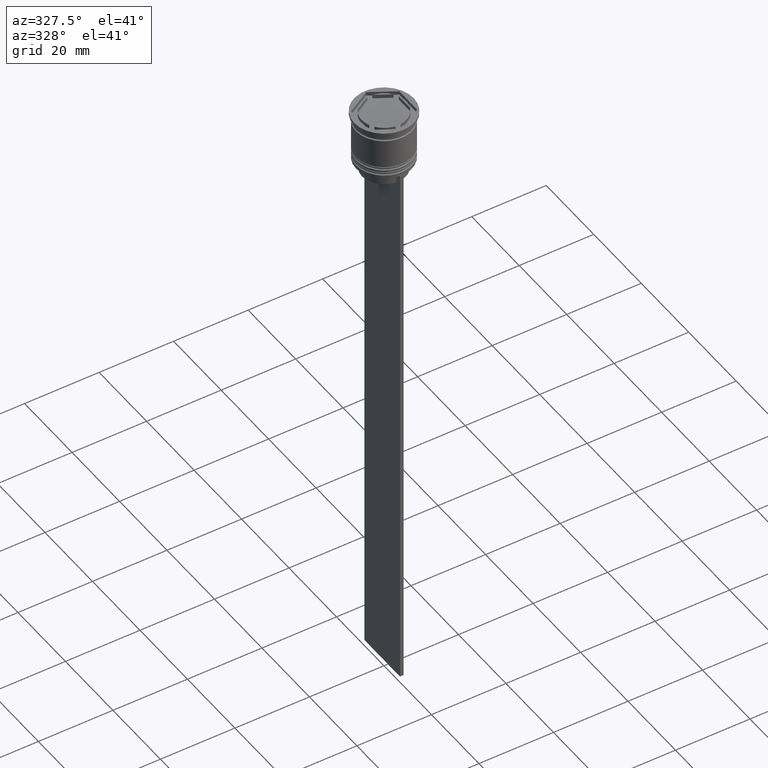
[diagram: clean part render]
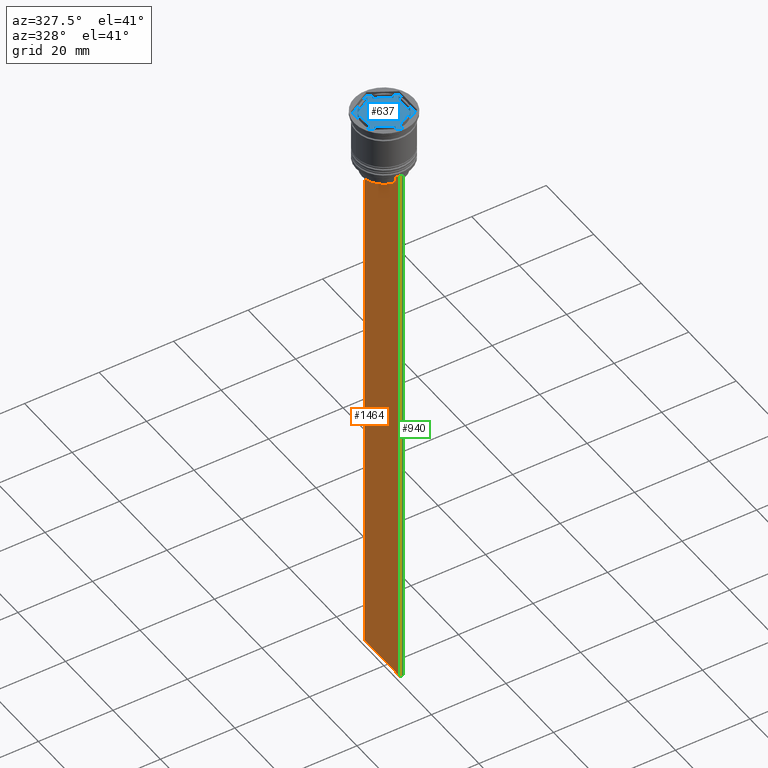
[diagram: same view with three faces highlighted in distinct colors, each labeled with its STEP entity id]
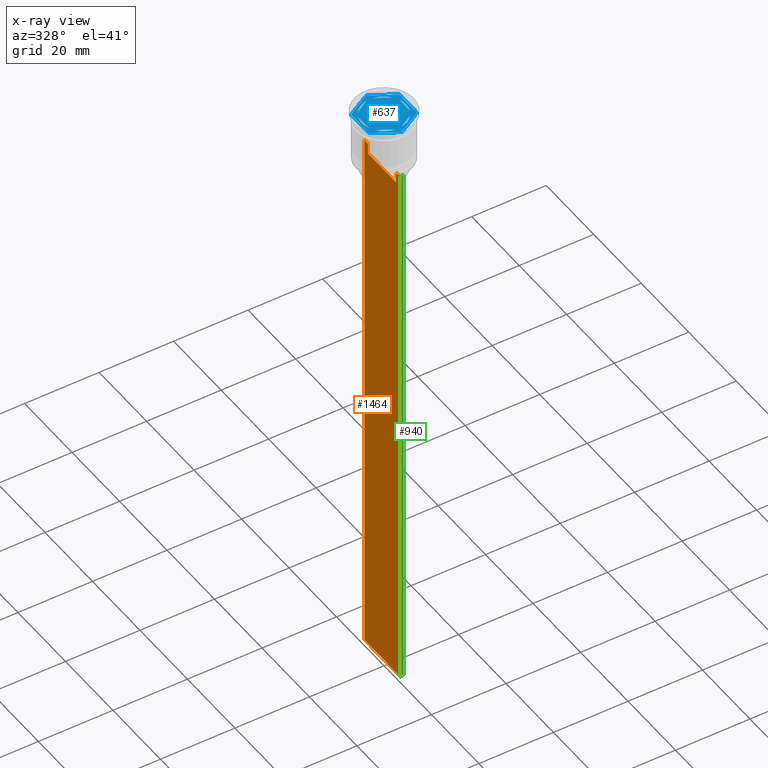
[diagram: x-ray of the same camera — body ghosted, the three highlighted faces saturated]
A machine part, auxiliary view with three faces highlighted in distinct colors.
The next image is the same camera in x-ray (body ghosted, the three faces saturated) — at least one of them is partly hidden behind the body in this view.
Their STEP definitions:

[orange] entity #1464 — the highlighted planar face has unit normal (-1, 0, 0).
#3 = DIRECTION ( 'NONE',  ( 0.000000000000000000, -1.000000000000000000, 0.000000000000000000 ) ) ;
#17 = EDGE_CURVE ( 'NONE', #614, #95, #1776, .T. ) ;
#49 = EDGE_CURVE ( 'NONE', #921, #2111, #803, .T. ) ;
#88 = CARTESIAN_POINT ( 'NONE',  ( -0.5000000000000000000, -7.499999999999999112, -14.00000000000000178 ) ) ;
#95 = VERTEX_POINT ( 'NONE', #2182 ) ;
#101 = CARTESIAN_POINT ( 'NONE',  ( -0.5000000000000000000, -6.380438856379706536, -14.00000000000000178 ) ) ;
#103 = ORIENTED_EDGE ( 'NONE', *, *, #1851, .F. ) ;
#104 = B_SPLINE_CURVE_WITH_KNOTS ( 'NONE', 3,
 ( #1912, #382, #934, #372 ),
 .UNSPECIFIED., .F., .F.,
 ( 4, 4 ),
 ( 0.02765270321082434479, 0.02836198271238431559 ),
 .UNSPECIFIED. ) ;
#133 = ORIENTED_EDGE ( 'NONE', *, *, #2258, .F. ) ;
#140 = VERTEX_POINT ( 'NONE', #1061 ) ;
#161 = EDGE_CURVE ( 'NONE', #828, #1023, #1672, .T. ) ;
#170 = ORIENTED_EDGE ( 'NONE', *, *, #253, .F. ) ;
#200 = ORIENTED_EDGE ( 'NONE', *, *, #161, .F. ) ;
#253 = EDGE_CURVE ( 'NONE', #1757, #828, #1494, .T. ) ;
#372 = CARTESIAN_POINT ( 'NONE',  ( -0.5000000000000000000, -6.380438856379706536, -14.00000000000000178 ) ) ;
#382 = CARTESIAN_POINT ( 'NONE',  ( -0.5000000000000000000, -6.046019991840948293, -14.33335703538585726 ) ) ;
#413 = PLANE ( 'NONE',  #1186 ) ;
#430 = VECTOR ( 'NONE', #1939, 1000.000000000000000 ) ;
#484 = ORIENTED_EDGE ( 'NONE', *, *, #585, .F. ) ;
#503 = CARTESIAN_POINT ( 'NONE',  ( -0.5000000000000000000, -7.499999999999999112, 1.033296378372908997 ) ) ;
#552 = ORIENTED_EDGE ( 'NONE', *, *, #1822, .F. ) ;
#576 = DIRECTION ( 'NONE',  ( 0.000000000000000000, 0.000000000000000000, -1.000000000000000000 ) ) ;
#585 = EDGE_CURVE ( 'NONE', #95, #1757, #892, .T. ) ;
#596 = DIRECTION ( 'NONE',  ( 0.000000000000000000, -1.000000000000000000, 0.000000000000000000 ) ) ;
#603 = FACE_OUTER_BOUND ( 'NONE', #1289, .T. ) ;
#608 = CARTESIAN_POINT ( 'NONE',  ( -0.5000000000000000000, 7.500000000000002665, -14.00000000000000178 ) ) ;
#614 = VERTEX_POINT ( 'NONE', #101 ) ;
#665 = CARTESIAN_POINT ( 'NONE',  ( -0.5000000000000000000, -7.499999999999999112, -14.00000000000000178 ) ) ;
#736 = CARTESIAN_POINT ( 'NONE',  ( -0.5000000000000000000, -7.499999999999999112, -14.00000000000000178 ) ) ;
#761 = CARTESIAN_POINT ( 'NONE',  ( -0.5000000000000000000, 7.500000000000002665, 1.033296378372908997 ) ) ;
#792 = CARTESIAN_POINT ( 'NONE',  ( -0.5000000000000000000, 7.383088784512886527, -14.00000000000000178 ) ) ;
#803 = LINE ( 'NONE', #1575, #1517 ) ;
#828 = VERTEX_POINT ( 'NONE', #979 ) ;
#852 = CARTESIAN_POINT ( 'NONE',  ( -0.5000000000000000000, 6.046020074006152711, -14.33335695351623151 ) ) ;
#854 = CARTESIAN_POINT ( 'NONE',  ( -0.5000000000000000000, 5.878775382679625849, 0.000000000000000000 ) ) ;
#875 = CARTESIAN_POINT ( 'NONE',  ( -0.5000000000000000000, 5.878775382679625849, -14.50000000000000000 ) ) ;
#878 = VECTOR ( 'NONE', #576, 1000.000000000000000 ) ;
#892 = LINE ( 'NONE', #665, #2117 ) ;
#894 = CARTESIAN_POINT ( 'NONE',  ( -0.5000000000000000000, 6.380438856379706536, -14.00000000000000178 ) ) ;
#905 = DIRECTION ( 'NONE',  ( 0.000000000000000000, 1.000000000000000000, 0.000000000000000000 ) ) ;
#921 = VERTEX_POINT ( 'NONE', #1078 ) ;
#934 = CARTESIAN_POINT ( 'NONE',  ( -0.5000000000000000000, -6.213239311785844876, -14.16668851110870087 ) ) ;
#957 = DIRECTION ( 'NONE',  ( 0.000000000000000000, 0.000000000000000000, -1.000000000000000000 ) ) ;
#964 = ORIENTED_EDGE ( 'NONE', *, *, #49, .F. ) ;
#979 = CARTESIAN_POINT ( 'NONE',  ( -0.5000000000000000000, -7.499999999999999112, -163.9999999999999716 ) ) ;
#993 = CARTESIAN_POINT ( 'NONE',  ( -0.5000000000000000000, 5.899999999999998579, -17.00000000000000000 ) ) ;
#997 = ORIENTED_EDGE ( 'NONE', *, *, #2435, .F. ) ;
#1023 = VERTEX_POINT ( 'NONE', #2011 ) ;
#1061 = CARTESIAN_POINT ( 'NONE',  ( -0.5000000000000000000, 5.878775382679625849, -14.50000000000000000 ) ) ;
#1070 = EDGE_CURVE ( 'NONE', #1688, #140, #2314, .T. ) ;
#1078 = CARTESIAN_POINT ( 'NONE',  ( -0.5000000000000000000, -5.878775382679625849, -17.00000000000000000 ) ) ;
#1081 = DIRECTION ( 'NONE',  ( 0.000000000000000000, -1.000000000000000000, 0.000000000000000000 ) ) ;
#1155 = VECTOR ( 'NONE', #596, 1000.000000000000000 ) ;
#1186 = AXIS2_PLACEMENT_3D ( 'NONE', #503, #1262, #1298 ) ;
#1213 = CARTESIAN_POINT ( 'NONE',  ( -0.5000000000000000000, -7.499999999999999112, -14.00000000000000178 ) ) ;
#1252 = CARTESIAN_POINT ( 'NONE',  ( -0.5000000000000000000, -5.878775382679625849, -14.50000000000000000 ) ) ;
#1262 = DIRECTION ( 'NONE',  ( -1.000000000000000000, 0.000000000000000000, 0.000000000000000000 ) ) ;
#1289 = EDGE_LOOP ( 'NONE', ( #2166, #133, #552, #1798, #200, #170, #484, #1328, #1591, #964, #997, #103 ) ) ;
#1298 = DIRECTION ( 'NONE',  ( 0.000000000000000000, 0.000000000000000000, 1.000000000000000000 ) ) ;
#1316 = CARTESIAN_POINT ( 'NONE',  ( -0.5000000000000000000, -7.499999999999999112, 1.033296378372908997 ) ) ;
#1328 = ORIENTED_EDGE ( 'NONE', *, *, #17, .F. ) ;
#1348 = VECTOR ( 'NONE', #1786, 1000.000000000000000 ) ;
#1372 = DIRECTION ( 'NONE',  ( -0.000000000000000000, -0.000000000000000000, 1.000000000000000000 ) ) ;
#1430 = VERTEX_POINT ( 'NONE', #792 ) ;
#1464 = ADVANCED_FACE ( 'NONE', ( #603 ), #413, .T. ) ;
#1484 = CARTESIAN_POINT ( 'NONE',  ( -0.5000000000000000000, -7.499999999999999112, -163.9999999999999716 ) ) ;
#1494 = LINE ( 'NONE', #1316, #878 ) ;
#1517 = VECTOR ( 'NONE', #1372, 1000.000000000000000 ) ;
#1575 = CARTESIAN_POINT ( 'NONE',  ( -0.5000000000000000000, -5.878775382679625849, 0.000000000000000000 ) ) ;
#1591 = ORIENTED_EDGE ( 'NONE', *, *, #1634, .F. ) ;
#1634 = EDGE_CURVE ( 'NONE', #2111, #614, #104, .T. ) ;
#1672 = LINE ( 'NONE', #1484, #2211 ) ;
#1688 = VERTEX_POINT ( 'NONE', #1742 ) ;
#1689 = LINE ( 'NONE', #736, #2167 ) ;
#1742 = CARTESIAN_POINT ( 'NONE',  ( -0.5000000000000000000, 6.380438856379706536, -14.00000000000000178 ) ) ;
#1757 = VERTEX_POINT ( 'NONE', #2331 ) ;
#1776 = LINE ( 'NONE', #1213, #430 ) ;
#1786 = DIRECTION ( 'NONE',  ( 0.000000000000000000, 0.000000000000000000, -1.000000000000000000 ) ) ;
#1798 = ORIENTED_EDGE ( 'NONE', *, *, #2279, .T. ) ;
#1803 = LINE ( 'NONE', #88, #1954 ) ;
#1822 = EDGE_CURVE ( 'NONE', #2414, #1430, #1803, .T. ) ;
#1839 = CARTESIAN_POINT ( 'NONE',  ( -0.5000000000000000000, 6.213239387491007015, -14.16668843563492430 ) ) ;
#1851 = EDGE_CURVE ( 'NONE', #140, #2343, #2352, .T. ) ;
#1912 = CARTESIAN_POINT ( 'NONE',  ( -0.5000000000000000000, -5.878775382679625849, -14.50000000000000000 ) ) ;
#1939 = DIRECTION ( 'NONE',  ( 0.000000000000000000, -1.000000000000000000, 0.000000000000000000 ) ) ;
#1954 = VECTOR ( 'NONE', #2341, 1000.000000000000000 ) ;
#2011 = CARTESIAN_POINT ( 'NONE',  ( -0.5000000000000000000, 7.500000000000002665, -163.9999999999999716 ) ) ;
#2085 = VECTOR ( 'NONE', #957, 1000.000000000000000 ) ;
#2111 = VERTEX_POINT ( 'NONE', #1252 ) ;
#2117 = VECTOR ( 'NONE', #1081, 1000.000000000000000 ) ;
#2166 = ORIENTED_EDGE ( 'NONE', *, *, #1070, .F. ) ;
#2167 = VECTOR ( 'NONE', #3, 1000.000000000000000 ) ;
#2182 = CARTESIAN_POINT ( 'NONE',  ( -0.5000000000000000000, -7.383088784512886527, -14.00000000000000178 ) ) ;
#2211 = VECTOR ( 'NONE', #905, 1000.000000000000000 ) ;
#2258 = EDGE_CURVE ( 'NONE', #1430, #1688, #1689, .T. ) ;
#2279 = EDGE_CURVE ( 'NONE', #2414, #1023, #2487, .T. ) ;
#2300 = CARTESIAN_POINT ( 'NONE',  ( -0.5000000000000000000, 5.878775382679625849, -17.00000000000000000 ) ) ;
#2314 = B_SPLINE_CURVE_WITH_KNOTS ( 'NONE', 3,
 ( #894, #1839, #852, #875 ),
 .UNSPECIFIED., .F., .F.,
 ( 4, 4 ),
 ( 0.01087727669788152163, 0.01158556069794289788 ),
 .UNSPECIFIED. ) ;
#2330 = LINE ( 'NONE', #993, #1155 ) ;
#2331 = CARTESIAN_POINT ( 'NONE',  ( -0.5000000000000000000, -7.499999999999999112, -14.00000000000000178 ) ) ;
#2341 = DIRECTION ( 'NONE',  ( 0.000000000000000000, -1.000000000000000000, 0.000000000000000000 ) ) ;
#2343 = VERTEX_POINT ( 'NONE', #2300 ) ;
#2352 = LINE ( 'NONE', #854, #1348 ) ;
#2414 = VERTEX_POINT ( 'NONE', #608 ) ;
#2435 = EDGE_CURVE ( 'NONE', #2343, #921, #2330, .T. ) ;
#2487 = LINE ( 'NONE', #761, #2085 ) ;

[blue] entity #637 — the highlighted planar face has unit normal (0, 0, 1).
#5 = EDGE_CURVE ( 'NONE', #860, #815, #1958, .T. ) ;
#10 = ORIENTED_EDGE ( 'NONE', *, *, #857, .F. ) ;
#11 = CARTESIAN_POINT ( 'NONE',  ( 0.000000000000000000, 0.000000000000000000, -1.000000000000000000 ) ) ;
#19 = CIRCLE ( 'NONE', #1380, 6.000000000000000888 ) ;
#24 = CIRCLE ( 'NONE', #1111, 6.000000000000000888 ) ;
#33 = DIRECTION ( 'NONE',  ( 0.000000000000000000, 0.000000000000000000, 1.000000000000000000 ) ) ;
#39 = LINE ( 'NONE', #2174, #1996 ) ;
#46 = EDGE_CURVE ( 'NONE', #2190, #1901, #2169, .T. ) ;
#78 = CARTESIAN_POINT ( 'NONE',  ( 0.000000000000000000, 0.000000000000000000, -1.000000000000000000 ) ) ;
#94 = EDGE_LOOP ( 'NONE', ( #10, #1659, #1622 ) ) ;
#99 = DIRECTION ( 'NONE',  ( 0.000000000000000000, 1.000000000000000000, 0.000000000000000000 ) ) ;
#113 = VECTOR ( 'NONE', #2175, 1000.000000000000114 ) ;
#120 = VECTOR ( 'NONE', #1859, 1000.000000000000114 ) ;
#121 = EDGE_CURVE ( 'NONE', #903, #1617, #141, .T. ) ;
#123 = CARTESIAN_POINT ( 'NONE',  ( -5.500000000000001776, 3.175426480542942187, -1.000000000000000888 ) ) ;
#141 = LINE ( 'NONE', #1103, #120 ) ;
#146 = CARTESIAN_POINT ( 'NONE',  ( 5.500000000000000000, -2.397915761656362665, -1.000000000000000888 ) ) ;
#152 = EDGE_LOOP ( 'NONE', ( #422, #1701 ) ) ;
#212 = VERTEX_POINT ( 'NONE', #1624 ) ;
#214 = EDGE_CURVE ( 'NONE', #815, #860, #725, .T. ) ;
#221 = AXIS2_PLACEMENT_3D ( 'NONE', #1646, #515, #1277 ) ;
#257 = LINE ( 'NONE', #1783, #2406 ) ;
#292 = ORIENTED_EDGE ( 'NONE', *, *, #2374, .T. ) ;
#312 = CARTESIAN_POINT ( 'NONE',  ( -5.500000000000001776, 2.397915761656359113, -1.000000000000000888 ) ) ;
#317 = VECTOR ( 'NONE', #537, 1000.000000000000000 ) ;
#370 = ORIENTED_EDGE ( 'NONE', *, *, #214, .F. ) ;
#379 = ORIENTED_EDGE ( 'NONE', *, *, #46, .T. ) ;
#384 = DIRECTION ( 'NONE',  ( 1.000000000000000000, 0.000000000000000000, 0.000000000000000000 ) ) ;
#394 = AXIS2_PLACEMENT_3D ( 'NONE', #869, #1448, #1092 ) ;
#399 = CARTESIAN_POINT ( 'NONE',  ( 0.000000000000000000, 7.505553499465133171, -1.000000000000000000 ) ) ;
#422 = ORIENTED_EDGE ( 'NONE', *, *, #2005, .F. ) ;
#459 = DIRECTION ( 'NONE',  ( -0.8660254037844387076, 0.4999999999999997224, 0.000000000000000000 ) ) ;
#469 = DIRECTION ( 'NONE',  ( 0.8660254037844385966, 0.5000000000000001110, 0.000000000000000000 ) ) ;
#478 = DIRECTION ( 'NONE',  ( 1.000000000000000000, 0.000000000000000000, 0.000000000000000000 ) ) ;
#479 = CARTESIAN_POINT ( 'NONE',  ( 5.500000000000000000, -3.175426480542943519, -1.000000000000000888 ) ) ;
#515 = DIRECTION ( 'NONE',  ( 0.000000000000000000, 0.000000000000000000, 1.000000000000000000 ) ) ;
#516 = EDGE_CURVE ( 'NONE', #1256, #212, #24, .T. ) ;
#532 = EDGE_CURVE ( 'NONE', #1617, #903, #1712, .T. ) ;
#537 = DIRECTION ( 'NONE',  ( 2.311253228826399154E-16, 1.000000000000000000, 0.000000000000000000 ) ) ;
#559 = ORIENTED_EDGE ( 'NONE', *, *, #516, .F. ) ;
#572 = DIRECTION ( 'NONE',  ( 0.000000000000000000, 0.000000000000000000, 1.000000000000000000 ) ) ;
#594 = CARTESIAN_POINT ( 'NONE',  ( 6.499999999999999112, -3.752776749732567030, -1.000000000000000000 ) ) ;
#630 = VECTOR ( 'NONE', #459, 1000.000000000000114 ) ;
#631 = DIRECTION ( 'NONE',  ( 1.000000000000000000, 0.000000000000000000, 0.000000000000000000 ) ) ;
#637 = ADVANCED_FACE ( 'NONE', ( #704, #2402, #1255, #694, #1067, #1466, #2415 ), #1057, .T. ) ;
#638 = AXIS2_PLACEMENT_3D ( 'NONE', #11, #1173, #631 ) ;
#670 = EDGE_CURVE ( 'NONE', #931, #990, #2114, .T. ) ;
#694 = FACE_BOUND ( 'NONE', #152, .T. ) ;
#704 = FACE_BOUND ( 'NONE', #1793, .T. ) ;
#725 = LINE ( 'NONE', #1686, #113 ) ;
#729 = LINE ( 'NONE', #2464, #630 ) ;
#735 = ORIENTED_EDGE ( 'NONE', *, *, #2068, .F. ) ;
#794 = VERTEX_POINT ( 'NONE', #399 ) ;
#802 = DIRECTION ( 'NONE',  ( 1.000000000000000000, 0.000000000000000000, 0.000000000000000000 ) ) ;
#807 = EDGE_CURVE ( 'NONE', #794, #1635, #1561, .T. ) ;
#809 = VERTEX_POINT ( 'NONE', #812 ) ;
#812 = CARTESIAN_POINT ( 'NONE',  ( -6.500000000000000888, -3.752776749732568806, -1.000000000000000000 ) ) ;
#815 = VERTEX_POINT ( 'NONE', #2161 ) ;
#827 = CARTESIAN_POINT ( 'NONE',  ( 0.000000000000000000, 0.000000000000000000, -1.000000000000000000 ) ) ;
#846 = CARTESIAN_POINT ( 'NONE',  ( 4.826655965729517384, 3.564181839986237499, -1.000000000000000888 ) ) ;
#857 = EDGE_CURVE ( 'NONE', #1535, #931, #19, .T. ) ;
#858 = ORIENTED_EDGE ( 'NONE', *, *, #1015, .F. ) ;
#860 = VERTEX_POINT ( 'NONE', #846 ) ;
#869 = CARTESIAN_POINT ( 'NONE',  ( 0.000000000000000000, 0.000000000000000000, -1.000000000000000000 ) ) ;
#881 = CIRCLE ( 'NONE', #1038, 6.000000000000000888 ) ;
#903 = VERTEX_POINT ( 'NONE', #1936 ) ;
#931 = VERTEX_POINT ( 'NONE', #1274 ) ;
#942 = ORIENTED_EDGE ( 'NONE', *, *, #807, .T. ) ;
#967 = LINE ( 'NONE', #2086, #317 ) ;
#976 = DIRECTION ( 'NONE',  ( 0.8660254037844387076, -0.4999999999999997224, 0.000000000000000000 ) ) ;
#983 = CARTESIAN_POINT ( 'NONE',  ( 0.000000000000000000, 0.000000000000000000, -1.000000000000000000 ) ) ;
#990 = VERTEX_POINT ( 'NONE', #1260 ) ;
#1015 = EDGE_CURVE ( 'NONE', #2304, #2100, #2203, .T. ) ;
#1038 = AXIS2_PLACEMENT_3D ( 'NONE', #1865, #1652, #478 ) ;
#1057 = PLANE ( 'NONE',  #221 ) ;
#1067 = FACE_BOUND ( 'NONE', #94, .T. ) ;
#1084 = EDGE_CURVE ( 'NONE', #212, #1256, #1799, .T. ) ;
#1092 = DIRECTION ( 'NONE',  ( 1.000000000000000000, 0.000000000000000000, 0.000000000000000000 ) ) ;
#1103 = CARTESIAN_POINT ( 'NONE',  ( -1.734723475976807094E-15, -6.350852961085884374, -1.000000000000000888 ) ) ;
#1111 = AXIS2_PLACEMENT_3D ( 'NONE', #983, #33, #802 ) ;
#1122 = CARTESIAN_POINT ( 'NONE',  ( 5.500000000000001776, 2.397915761656360001, -1.000000000000000888 ) ) ;
#1132 = CARTESIAN_POINT ( 'NONE',  ( -6.500000000000000888, 3.752776749732564365, -1.000000000000000000 ) ) ;
#1173 = DIRECTION ( 'NONE',  ( 0.000000000000000000, 0.000000000000000000, 1.000000000000000000 ) ) ;
#1226 = VECTOR ( 'NONE', #1925, 1000.000000000000000 ) ;
#1243 = DIRECTION ( 'NONE',  ( -2.731481088613015255E-16, -1.000000000000000000, 0.000000000000000000 ) ) ;
#1255 = FACE_BOUND ( 'NONE', #2150, .T. ) ;
#1256 = VERTEX_POINT ( 'NONE', #1338 ) ;
#1259 = LINE ( 'NONE', #123, #1275 ) ;
#1260 = CARTESIAN_POINT ( 'NONE',  ( -5.500000000000001776, -2.397915761656359113, -1.000000000000000888 ) ) ;
#1274 = CARTESIAN_POINT ( 'NONE',  ( -6.000000000000000888, 0.000000000000000000, -1.000000000000000000 ) ) ;
#1275 = VECTOR ( 'NONE', #99, 1000.000000000000000 ) ;
#1277 = DIRECTION ( 'NONE',  ( 1.000000000000000000, 0.000000000000000000, -0.000000000000000000 ) ) ;
#1306 = VECTOR ( 'NONE', #2028, 1000.000000000000000 ) ;
#1312 = CARTESIAN_POINT ( 'NONE',  ( 0.000000000000000000, 0.000000000000000000, -1.000000000000000000 ) ) ;
#1338 = CARTESIAN_POINT ( 'NONE',  ( -0.6733440342704829495, 5.962097601642593503, -1.000000000000000888 ) ) ;
#1380 = AXIS2_PLACEMENT_3D ( 'NONE', #827, #1771, #1401 ) ;
#1382 = ORIENTED_EDGE ( 'NONE', *, *, #1923, .T. ) ;
#1383 = ORIENTED_EDGE ( 'NONE', *, *, #5, .F. ) ;
#1396 = LINE ( 'NONE', #2339, #2357 ) ;
#1399 = CARTESIAN_POINT ( 'NONE',  ( -4.826655965729520048, -3.564181839986235723, -1.000000000000000888 ) ) ;
#1401 = DIRECTION ( 'NONE',  ( 1.000000000000000000, 0.000000000000000000, 0.000000000000000000 ) ) ;
#1431 = VECTOR ( 'NONE', #1243, 1000.000000000000000 ) ;
#1446 = EDGE_LOOP ( 'NONE', ( #559, #1547 ) ) ;
#1448 = DIRECTION ( 'NONE',  ( 0.000000000000000000, 0.000000000000000000, 1.000000000000000000 ) ) ;
#1459 = VERTEX_POINT ( 'NONE', #2327 ) ;
#1466 = FACE_BOUND ( 'NONE', #1446, .T. ) ;
#1523 = CARTESIAN_POINT ( 'NONE',  ( -0.6733440342704850590, -5.962097601642593503, -1.000000000000000888 ) ) ;
#1535 = VERTEX_POINT ( 'NONE', #312 ) ;
#1547 = ORIENTED_EDGE ( 'NONE', *, *, #1084, .F. ) ;
#1549 = EDGE_CURVE ( 'NONE', #1459, #794, #729, .T. ) ;
#1561 = LINE ( 'NONE', #1744, #1226 ) ;
#1617 = VERTEX_POINT ( 'NONE', #2284 ) ;
#1622 = ORIENTED_EDGE ( 'NONE', *, *, #670, .F. ) ;
#1624 = CARTESIAN_POINT ( 'NONE',  ( -4.826655965729520048, 3.564181839986233946, -1.000000000000000888 ) ) ;
#1635 = VERTEX_POINT ( 'NONE', #1132 ) ;
#1646 = CARTESIAN_POINT ( 'NONE',  ( 0.000000000000000000, 0.000000000000000000, -1.000000000000000000 ) ) ;
#1652 = DIRECTION ( 'NONE',  ( 0.000000000000000000, 0.000000000000000000, 1.000000000000000000 ) ) ;
#1659 = ORIENTED_EDGE ( 'NONE', *, *, #2165, .F. ) ;
#1669 = VERTEX_POINT ( 'NONE', #1523 ) ;
#1686 = CARTESIAN_POINT ( 'NONE',  ( 5.500000000000001776, 3.175426480542944407, -1.000000000000000888 ) ) ;
#1701 = ORIENTED_EDGE ( 'NONE', *, *, #1892, .F. ) ;
#1712 = CIRCLE ( 'NONE', #394, 6.000000000000000888 ) ;
#1744 = CARTESIAN_POINT ( 'NONE',  ( 0.000000000000000000, 7.505553499465133171, -1.000000000000000000 ) ) ;
#1754 = AXIS2_PLACEMENT_3D ( 'NONE', #78, #2373, #1997 ) ;
#1771 = DIRECTION ( 'NONE',  ( 0.000000000000000000, 0.000000000000000000, 1.000000000000000000 ) ) ;
#1783 = CARTESIAN_POINT ( 'NONE',  ( -6.500000000000000888, -3.752776749732568806, -1.000000000000000000 ) ) ;
#1793 = EDGE_LOOP ( 'NONE', ( #1383, #370 ) ) ;
#1799 = LINE ( 'NONE', #2428, #1306 ) ;
#1846 = ORIENTED_EDGE ( 'NONE', *, *, #1549, .T. ) ;
#1859 = DIRECTION ( 'NONE',  ( -0.8660254037844387076, -0.4999999999999997224, 0.000000000000000000 ) ) ;
#1865 = CARTESIAN_POINT ( 'NONE',  ( 0.000000000000000000, 0.000000000000000000, -1.000000000000000000 ) ) ;
#1892 = EDGE_CURVE ( 'NONE', #1669, #2391, #1396, .T. ) ;
#1901 = VERTEX_POINT ( 'NONE', #594 ) ;
#1914 = CIRCLE ( 'NONE', #638, 6.000000000000000888 ) ;
#1923 = EDGE_CURVE ( 'NONE', #1635, #809, #39, .T. ) ;
#1925 = DIRECTION ( 'NONE',  ( -0.8660254037844385966, -0.5000000000000001110, 0.000000000000000000 ) ) ;
#1936 = CARTESIAN_POINT ( 'NONE',  ( 4.826655965729520048, -3.564181839986233946, -1.000000000000000888 ) ) ;
#1958 = CIRCLE ( 'NONE', #1754, 6.000000000000000888 ) ;
#1984 = DIRECTION ( 'NONE',  ( 0.000000000000000000, -1.000000000000000000, 0.000000000000000000 ) ) ;
#1996 = VECTOR ( 'NONE', #1984, 1000.000000000000000 ) ;
#1997 = DIRECTION ( 'NONE',  ( 1.000000000000000000, 0.000000000000000000, 0.000000000000000000 ) ) ;
#1999 = ORIENTED_EDGE ( 'NONE', *, *, #2296, .T. ) ;
#2005 = EDGE_CURVE ( 'NONE', #2391, #1669, #1914, .T. ) ;
#2028 = DIRECTION ( 'NONE',  ( 0.8660254037844385966, 0.5000000000000001110, -0.000000000000000000 ) ) ;
#2059 = CARTESIAN_POINT ( 'NONE',  ( -4.280685092543093048E-16, -7.505553499465134060, -1.000000000000000000 ) ) ;
#2068 = EDGE_CURVE ( 'NONE', #2100, #2304, #881, .T. ) ;
#2086 = CARTESIAN_POINT ( 'NONE',  ( 6.499999999999999112, -3.752776749732567030, -1.000000000000000000 ) ) ;
#2100 = VERTEX_POINT ( 'NONE', #146 ) ;
#2114 = CIRCLE ( 'NONE', #2475, 6.000000000000000888 ) ;
#2150 = EDGE_LOOP ( 'NONE', ( #2383, #2449 ) ) ;
#2153 = DIRECTION ( 'NONE',  ( -0.8660254037844385966, 0.5000000000000002220, 0.000000000000000000 ) ) ;
#2161 = CARTESIAN_POINT ( 'NONE',  ( 0.6733440342704825055, 5.962097601642593503, -1.000000000000000888 ) ) ;
#2165 = EDGE_CURVE ( 'NONE', #990, #1535, #1259, .T. ) ;
#2169 = LINE ( 'NONE', #2192, #2488 ) ;
#2174 = CARTESIAN_POINT ( 'NONE',  ( -6.500000000000000888, 3.752776749732564365, -1.000000000000000000 ) ) ;
#2175 = DIRECTION ( 'NONE',  ( 0.8660254037844387076, -0.4999999999999997224, 0.000000000000000000 ) ) ;
#2190 = VERTEX_POINT ( 'NONE', #2059 ) ;
#2192 = CARTESIAN_POINT ( 'NONE',  ( -4.280685092543093048E-16, -7.505553499465134060, -1.000000000000000000 ) ) ;
#2203 = LINE ( 'NONE', #479, #1431 ) ;
#2257 = EDGE_LOOP ( 'NONE', ( #735, #858 ) ) ;
#2284 = CARTESIAN_POINT ( 'NONE',  ( 0.6733440342704786197, -5.962097601642593503, -1.000000000000000888 ) ) ;
#2296 = EDGE_CURVE ( 'NONE', #1901, #1459, #967, .T. ) ;
#2304 = VERTEX_POINT ( 'NONE', #1122 ) ;
#2327 = CARTESIAN_POINT ( 'NONE',  ( 6.500000000000000888, 3.752776749732567918, -1.000000000000000000 ) ) ;
#2339 = CARTESIAN_POINT ( 'NONE',  ( -5.500000000000001776, -3.175426480542941743, -1.000000000000000888 ) ) ;
#2357 = VECTOR ( 'NONE', #2153, 999.9999999999998863 ) ;
#2373 = DIRECTION ( 'NONE',  ( 0.000000000000000000, 0.000000000000000000, 1.000000000000000000 ) ) ;
#2374 = EDGE_CURVE ( 'NONE', #809, #2190, #257, .T. ) ;
#2383 = ORIENTED_EDGE ( 'NONE', *, *, #532, .F. ) ;
#2391 = VERTEX_POINT ( 'NONE', #1399 ) ;
#2402 = FACE_BOUND ( 'NONE', #2257, .T. ) ;
#2406 = VECTOR ( 'NONE', #976, 1000.000000000000114 ) ;
#2415 = FACE_OUTER_BOUND ( 'NONE', #2461, .T. ) ;
#2428 = CARTESIAN_POINT ( 'NONE',  ( 4.336808689942017736E-16, 6.350852961085885262, -1.000000000000000888 ) ) ;
#2449 = ORIENTED_EDGE ( 'NONE', *, *, #121, .F. ) ;
#2461 = EDGE_LOOP ( 'NONE', ( #1846, #942, #1382, #292, #379, #1999 ) ) ;
#2464 = CARTESIAN_POINT ( 'NONE',  ( 6.500000000000000888, 3.752776749732567918, -1.000000000000000000 ) ) ;
#2475 = AXIS2_PLACEMENT_3D ( 'NONE', #1312, #572, #384 ) ;
#2488 = VECTOR ( 'NONE', #469, 1000.000000000000114 ) ;

[green] entity #940 — the highlighted planar face has unit normal (0, -1, -0).
#150 = AXIS2_PLACEMENT_3D ( 'NONE', #466, #713, #1445 ) ;
#171 = CARTESIAN_POINT ( 'NONE',  ( 0.5000000000000000000, -7.499999999999999112, 1.033296378372908997 ) ) ;
#253 = EDGE_CURVE ( 'NONE', #1757, #828, #1494, .T. ) ;
#466 = CARTESIAN_POINT ( 'NONE',  ( 0.5000000000000000000, -7.499999999999999112, 1.033296378372908997 ) ) ;
#522 = CARTESIAN_POINT ( 'NONE',  ( 0.5000000000000000000, -7.499999999999999112, -163.9999999999999716 ) ) ;
#576 = DIRECTION ( 'NONE',  ( 0.000000000000000000, 0.000000000000000000, -1.000000000000000000 ) ) ;
#616 = ORIENTED_EDGE ( 'NONE', *, *, #1324, .F. ) ;
#681 = EDGE_LOOP ( 'NONE', ( #1960, #1998, #616, #1562 ) ) ;
#713 = DIRECTION ( 'NONE',  ( 0.000000000000000000, -1.000000000000000000, -0.000000000000000000 ) ) ;
#828 = VERTEX_POINT ( 'NONE', #979 ) ;
#878 = VECTOR ( 'NONE', #576, 1000.000000000000000 ) ;
#885 = DIRECTION ( 'NONE',  ( 1.000000000000000000, 0.000000000000000000, 0.000000000000000000 ) ) ;
#940 = ADVANCED_FACE ( 'NONE', ( #2423 ), #1842, .T. ) ;
#979 = CARTESIAN_POINT ( 'NONE',  ( -0.5000000000000000000, -7.499999999999999112, -163.9999999999999716 ) ) ;
#1048 = CARTESIAN_POINT ( 'NONE',  ( 0.5000000000000000000, -7.499999999999999112, -14.00000000000000178 ) ) ;
#1123 = EDGE_CURVE ( 'NONE', #1757, #1363, #1609, .T. ) ;
#1151 = CARTESIAN_POINT ( 'NONE',  ( 0.5000000000000000000, -7.499999999999999112, -14.00000000000000178 ) ) ;
#1172 = VERTEX_POINT ( 'NONE', #522 ) ;
#1316 = CARTESIAN_POINT ( 'NONE',  ( -0.5000000000000000000, -7.499999999999999112, 1.033296378372908997 ) ) ;
#1324 = EDGE_CURVE ( 'NONE', #1172, #828, #1496, .T. ) ;
#1361 = DIRECTION ( 'NONE',  ( -1.000000000000000000, 0.000000000000000000, 0.000000000000000000 ) ) ;
#1363 = VERTEX_POINT ( 'NONE', #1151 ) ;
#1445 = DIRECTION ( 'NONE',  ( 0.000000000000000000, 0.000000000000000000, -1.000000000000000000 ) ) ;
#1494 = LINE ( 'NONE', #1316, #878 ) ;
#1496 = LINE ( 'NONE', #1576, #2121 ) ;
#1553 = VECTOR ( 'NONE', #1698, 1000.000000000000000 ) ;
#1562 = ORIENTED_EDGE ( 'NONE', *, *, #2307, .F. ) ;
#1576 = CARTESIAN_POINT ( 'NONE',  ( 0.5000000000000000000, -7.499999999999999112, -163.9999999999999716 ) ) ;
#1609 = LINE ( 'NONE', #1048, #1741 ) ;
#1698 = DIRECTION ( 'NONE',  ( 0.000000000000000000, 0.000000000000000000, -1.000000000000000000 ) ) ;
#1741 = VECTOR ( 'NONE', #885, 1000.000000000000000 ) ;
#1757 = VERTEX_POINT ( 'NONE', #2331 ) ;
#1842 = PLANE ( 'NONE',  #150 ) ;
#1889 = LINE ( 'NONE', #171, #1553 ) ;
#1960 = ORIENTED_EDGE ( 'NONE', *, *, #1123, .F. ) ;
#1998 = ORIENTED_EDGE ( 'NONE', *, *, #253, .T. ) ;
#2121 = VECTOR ( 'NONE', #1361, 1000.000000000000000 ) ;
#2307 = EDGE_CURVE ( 'NONE', #1363, #1172, #1889, .T. ) ;
#2331 = CARTESIAN_POINT ( 'NONE',  ( -0.5000000000000000000, -7.499999999999999112, -14.00000000000000178 ) ) ;
#2423 = FACE_OUTER_BOUND ( 'NONE', #681, .T. ) ;